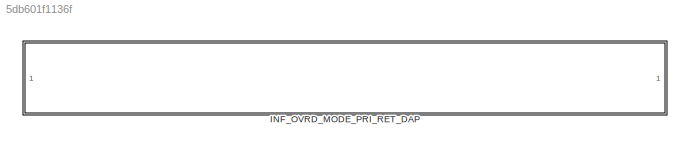
MODEL slx_5db601f1136f
KIND model
CONFIG AbsTol = auto
CONFIG EnableMultiTasking = off
CONFIG FixedStep = auto
CONFIG MaxStep = auto
CONFIG MinStep = auto
CONFIG RelTol = 1e-3
CONFIG SampleTimeConstraint = Unconstrained
CONFIG SolverName = VariableStepAuto
CONFIG StartTime = 0.0
CONFIG StopTime = 10.0
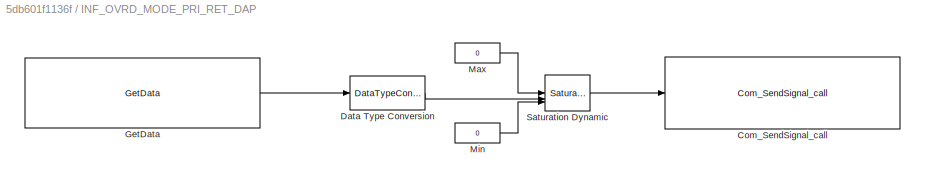
BLOCK [SubSystem] INF_OVRD_MODE_PRI_RET_DAP
  RTWSystemCode = Nonreusable function
  TreatAsAtomicUnit = on
BLOCK [Reference] INF_OVRD_MODE_PRI_RET_DAP/Com_SendSignal_call  REF=user_lib/Com_SendSignal_call
  SourceBlock = user_lib/Com_SendSignal_call
  SourceProductName = User Defined for IFLayer
BLOCK [DataTypeConversion] INF_OVRD_MODE_PRI_RET_DAP/Data Type Conversion
  ConvertRealWorld = Stored Integer (SI)
  RndMeth = Floor
  SaturateOnIntegerOverflow = off
BLOCK [Reference] INF_OVRD_MODE_PRI_RET_DAP/GetData  REF=user_lib/GetData
  SourceBlock = user_lib/GetData
  SourceProductName = User Defined for IFLayer
BLOCK [Constant] INF_OVRD_MODE_PRI_RET_DAP/Max
  OutDataTypeStr = Inherit: Inherit via back propagation
  Value = 0
BLOCK [Constant] INF_OVRD_MODE_PRI_RET_DAP/Min
  OutDataTypeStr = Inherit: Inherit via back propagation
  Value = 0
BLOCK [Reference] INF_OVRD_MODE_PRI_RET_DAP/Saturation Dynamic  REF=simulink/Discontinuities/Saturation
Dynamic
  SourceBlock = simulink/Discontinuities/Saturation\nDynamic
  SourceType = Saturation Dynamic
LINE INF_OVRD_MODE_PRI_RET_DAP/Data Type Conversion:1 -> INF_OVRD_MODE_PRI_RET_DAP/Saturation Dynamic:2
LINE INF_OVRD_MODE_PRI_RET_DAP/GetData:1 -> INF_OVRD_MODE_PRI_RET_DAP/Data Type Conversion:1
LINE INF_OVRD_MODE_PRI_RET_DAP/Max:1 -> INF_OVRD_MODE_PRI_RET_DAP/Saturation Dynamic:1
LINE INF_OVRD_MODE_PRI_RET_DAP/Min:1 -> INF_OVRD_MODE_PRI_RET_DAP/Saturation Dynamic:3
LINE INF_OVRD_MODE_PRI_RET_DAP/Saturation Dynamic:1 -> INF_OVRD_MODE_PRI_RET_DAP/Com_SendSignal_call:1
